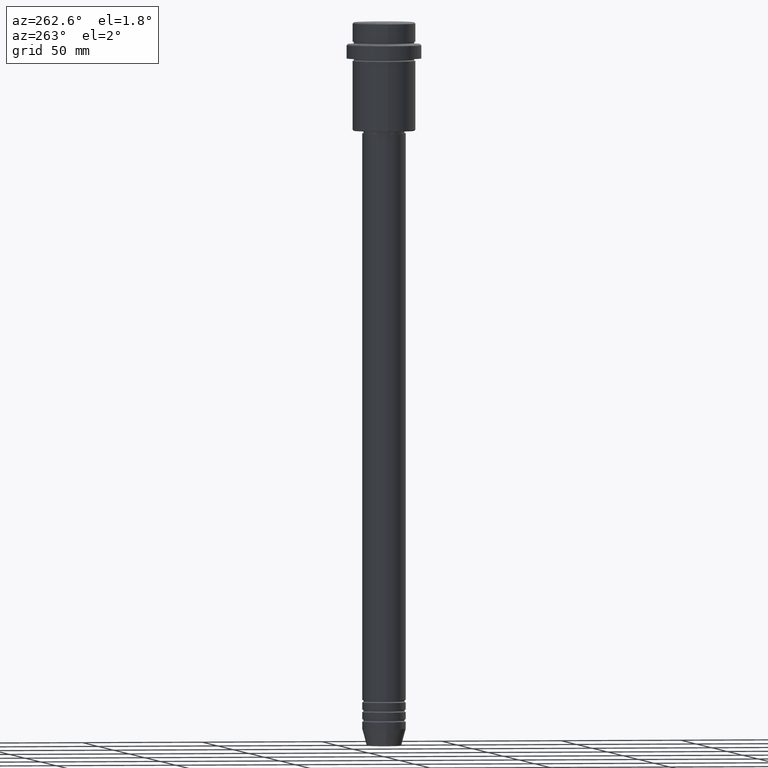
[diagram: clean part render]
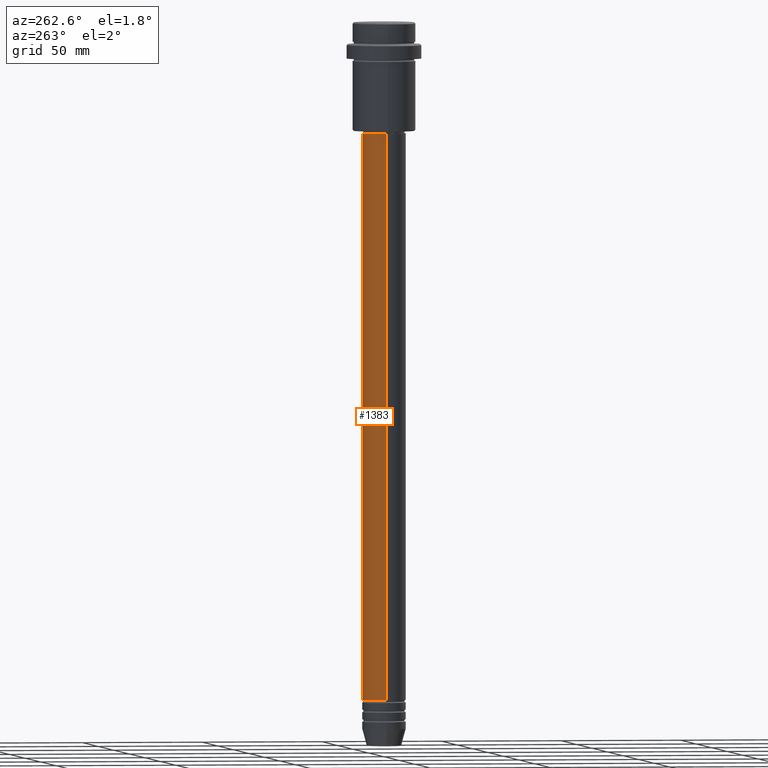
[diagram: same view with one face highlighted and labeled with its STEP entity id]
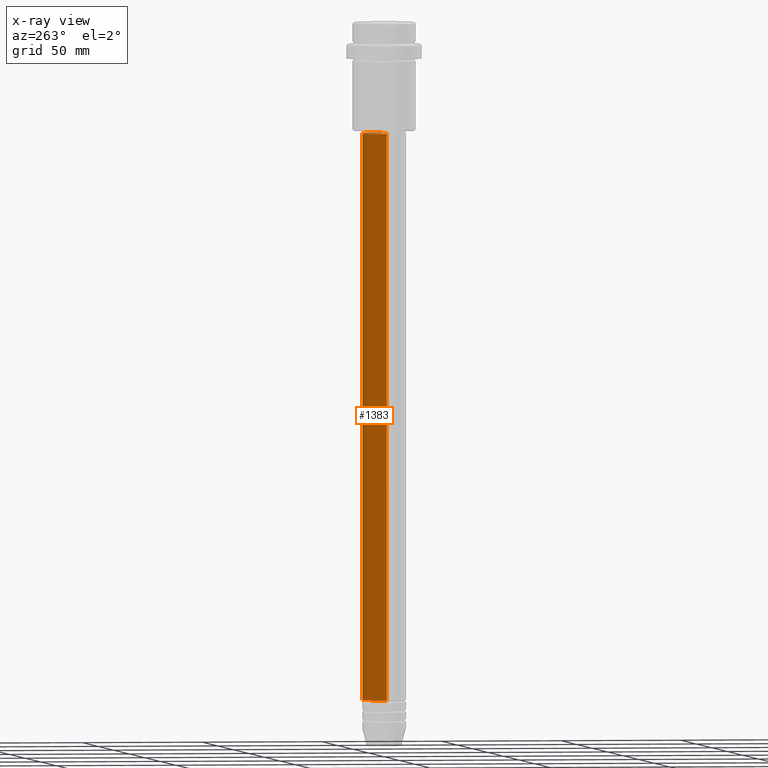
[diagram: x-ray of the same camera — body ghosted, the highlighted face saturated]
A machine part, auxiliary view. The second image highlights one B-rep face of the part: STEP entity #1383.
The next image is the same camera in x-ray: the body ghosted, the highlighted face saturated — about 0% of this face is hidden behind the body in this view.
In plain terms, the highlighted cylindrical surface (edge-blend (fillet) strip) has radius 9 mm, axis along (-0, -0, 1).
Its self-contained STEP definition (entity closure, byte-faithful):
#25 = ORIENTED_EDGE ( 'NONE', *, *, #1066, .T. ) ;
#40 = DIRECTION ( 'NONE',  ( -0.000000000000000000, -0.000000000000000000, 1.000000000000000000 ) ) ;
#93 = DIRECTION ( 'NONE',  ( -0.000000000000000000, -0.000000000000000000, 1.000000000000000000 ) ) ;
#97 = CIRCLE ( 'NONE', #216, 9.000000000000000000 ) ;
#113 = DIRECTION ( 'NONE',  ( 1.000000000000000000, 0.000000000000000000, 0.000000000000000000 ) ) ;
#118 = DIRECTION ( 'NONE',  ( 1.000000000000000000, 0.000000000000000000, 0.000000000000000000 ) ) ;
#134 = ORIENTED_EDGE ( 'NONE', *, *, #230, .T. ) ;
#147 = FACE_OUTER_BOUND ( 'NONE', #148, .T. ) ;
#148 = EDGE_LOOP ( 'NONE', ( #134, #25, #383, #187 ) ) ;
#187 = ORIENTED_EDGE ( 'NONE', *, *, #786, .F. ) ;
#216 = AXIS2_PLACEMENT_3D ( 'NONE', #760, #1414, #113 ) ;
#230 = EDGE_CURVE ( 'NONE', #1292, #1390, #97, .T. ) ;
#253 = VERTEX_POINT ( 'NONE', #750 ) ;
#258 = CARTESIAN_POINT ( 'NONE',  ( -9.000000000000001776, 1.102182119232617911E-15, 0.000000000000000000 ) ) ;
#314 = VERTEX_POINT ( 'NONE', #424 ) ;
#355 = CYLINDRICAL_SURFACE ( 'NONE', #1127, 9.000000000000001776 ) ;
#364 = LINE ( 'NONE', #258, #489 ) ;
#383 = ORIENTED_EDGE ( 'NONE', *, *, #1291, .F. ) ;
#424 = CARTESIAN_POINT ( 'NONE',  ( 9.000000000000001776, 0.000000000000000000, -46.00000000000009948 ) ) ;
#452 = DIRECTION ( 'NONE',  ( -0.000000000000000000, -0.000000000000000000, 1.000000000000000000 ) ) ;
#466 = VECTOR ( 'NONE', #93, 1000.000000000000000 ) ;
#489 = VECTOR ( 'NONE', #808, 1000.000000000000000 ) ;
#525 = LINE ( 'NONE', #1067, #466 ) ;
#576 = CARTESIAN_POINT ( 'NONE',  ( 9.000000000000000000, 0.000000000000000000, -280.9999999999999432 ) ) ;
#626 = CIRCLE ( 'NONE', #858, 9.000000000000001776 ) ;
#750 = CARTESIAN_POINT ( 'NONE',  ( -9.000000000000001776, 1.102182119232617911E-15, -46.00000000000009948 ) ) ;
#760 = CARTESIAN_POINT ( 'NONE',  ( 0.000000000000000000, 0.000000000000000000, -280.9999999999999432 ) ) ;
#786 = EDGE_CURVE ( 'NONE', #1292, #314, #525, .T. ) ;
#791 = CARTESIAN_POINT ( 'NONE',  ( 0.000000000000000000, 0.000000000000000000, -46.00000000000009948 ) ) ;
#808 = DIRECTION ( 'NONE',  ( -0.000000000000000000, -0.000000000000000000, 1.000000000000000000 ) ) ;
#858 = AXIS2_PLACEMENT_3D ( 'NONE', #791, #40, #118 ) ;
#1003 = CARTESIAN_POINT ( 'NONE',  ( 0.000000000000000000, 0.000000000000000000, 0.000000000000000000 ) ) ;
#1066 = EDGE_CURVE ( 'NONE', #1390, #253, #364, .T. ) ;
#1067 = CARTESIAN_POINT ( 'NONE',  ( 9.000000000000001776, 0.000000000000000000, 0.000000000000000000 ) ) ;
#1112 = CARTESIAN_POINT ( 'NONE',  ( -9.000000000000000000, 1.102182119232617714E-15, -280.9999999999999432 ) ) ;
#1127 = AXIS2_PLACEMENT_3D ( 'NONE', #1003, #452, #1212 ) ;
#1212 = DIRECTION ( 'NONE',  ( 1.000000000000000000, 0.000000000000000000, 0.000000000000000000 ) ) ;
#1291 = EDGE_CURVE ( 'NONE', #314, #253, #626, .T. ) ;
#1292 = VERTEX_POINT ( 'NONE', #576 ) ;
#1383 = ADVANCED_FACE ( 'NONE', ( #147 ), #355, .T. ) ;
#1390 = VERTEX_POINT ( 'NONE', #1112 ) ;
#1414 = DIRECTION ( 'NONE',  ( -0.000000000000000000, -0.000000000000000000, 1.000000000000000000 ) ) ;